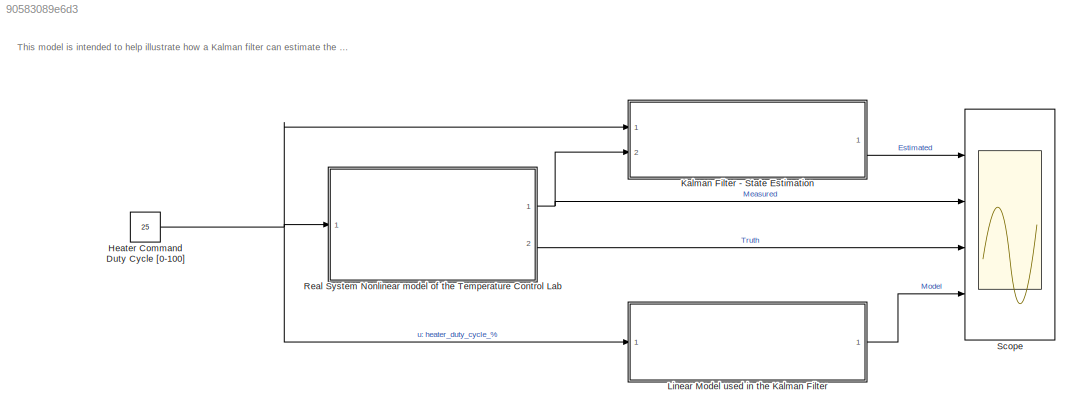
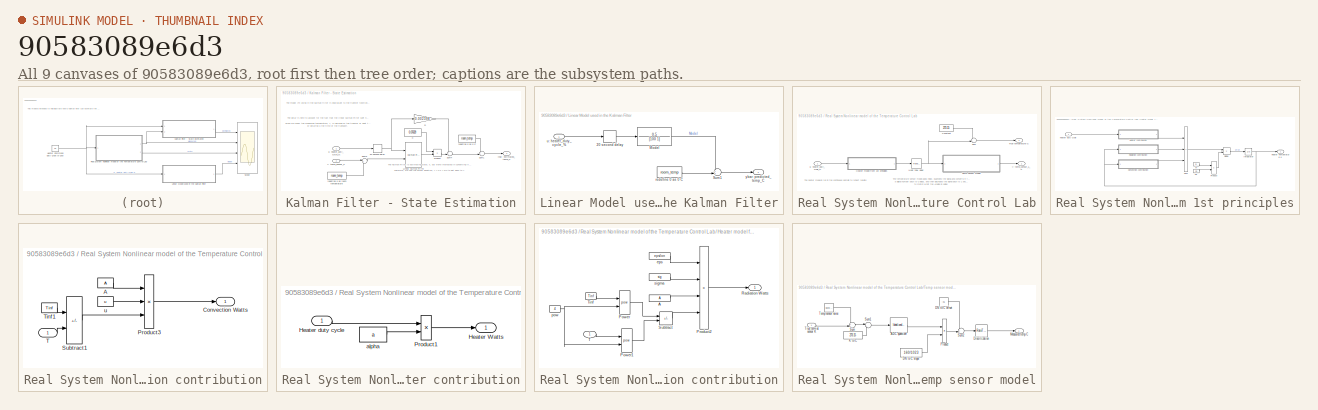
[diagram: thumbnail index - all 9 canvases of the model, root first then tree order]
MODEL slx_90583089e6d3
KIND model
CONFIG AbsTol = auto
CONFIG EnableMultiTasking = off
CONFIG FixedStep = 1
CONFIG MaxStep = auto
CONFIG MinStep = auto
CONFIG RelTol = 1e-3
CONFIG SampleTimeConstraint = Unconstrained
CONFIG SolverName = VariableStepAuto
CONFIG StartTime = 0.0
CONFIG StopTime = 500
WORKSPACE source: mxarray member
WORKSPACE A = 0.0012
WORKSPACE Cp = 500
WORKSPACE Tinf = 296
WORKSPACE a = 0.01
WORKSPACE epsilon = 0.9
WORKSPACE heat_flow_delay = 20
WORKSPACE m = 0.004
WORKSPACE room_temp = 23
WORKSPACE sig = 5.67e-08
WORKSPACE u = 10
BLOCK [Constant] Heater Command Duty Cycle [0-100]
  SampleTime = -1
  Value = 25
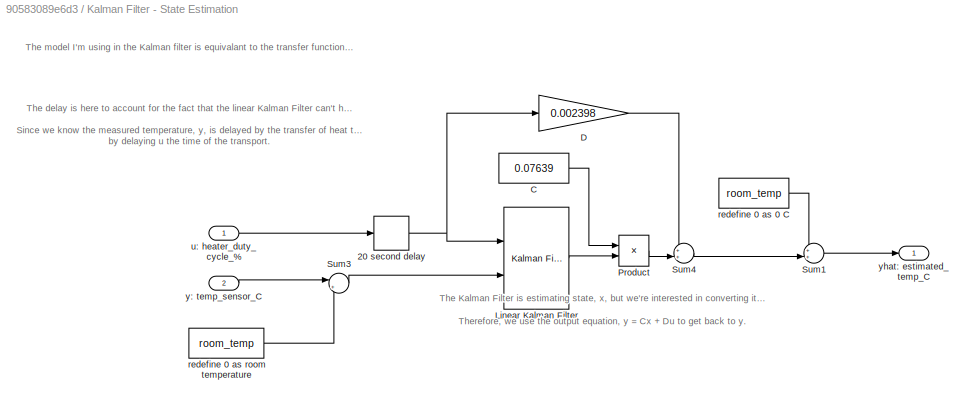
BLOCK [SubSystem] Kalman Filter - State Estimation
  Ports = [2, 1]
  RequestExecContextInheritance = off
BLOCK [Delay] Kalman Filter - State Estimation/20 second delay
  DelayLength = 20
  InputPortMap = u0
  Ports = [1, 1]
  SampleTime = 1
BLOCK [Constant] Kalman Filter - State Estimation/C
  Value = 0.07639
BLOCK [Gain] Kalman Filter - State Estimation/D
  Gain = 0.002398
BLOCK [Reference] Kalman Filter - State Estimation/Linear Kalman Filter  REF=ctrlSharedLib/Kalman Filter
  Ports = [2, 1]
  SourceBlock = ctrlSharedLib/Kalman Filter
  SourceProductBaseCode = CT,ID
  SourceType = ctrlKalmanFilter
BLOCK [Product] Kalman Filter - State Estimation/Product
  Ports = [2, 1]
BLOCK [Sum] Kalman Filter - State Estimation/Sum1
  Inputs = ++|
  Ports = [2, 1]
BLOCK [Sum] Kalman Filter - State Estimation/Sum3
  Inputs = |+-
  Ports = [2, 1]
BLOCK [Sum] Kalman Filter - State Estimation/Sum4
  Inputs = ++|
  Ports = [2, 1]
BLOCK [Constant] Kalman Filter - State Estimation/redefine 0 as 0 C
  Value = room_temp
BLOCK [Constant] Kalman Filter - State Estimation/redefine 0 as room temperature
  Value = room_temp
BLOCK [Inport] Kalman Filter - State Estimation/u: heater_duty_cycle_%
BLOCK [Inport] Kalman Filter - State Estimation/y: temp_sensor_C
  Port = 2
BLOCK [Outport] Kalman Filter - State Estimation/yhat: estimated_temp_C
  VectorParamsAs1DForOutWhenUnconnected = off
BLOCK [SubSystem] Linear Model used in the Kalman Filter
  Ports = [1, 1]
  RequestExecContextInheritance = off
BLOCK [Delay] Linear Model used in the Kalman Filter/20 second delay
  DelayLength = 20
  InputPortMap = u0
  Ports = [1, 1]
  SampleTime = 1
BLOCK [TransferFcn] Linear Model used in the Kalman Filter/Model
  Denominator = [100 1]
  Numerator = 0.5
BLOCK [Sum] Linear Model used in the Kalman Filter/Sum1
  Inputs = ++|
  Ports = [2, 1]
BLOCK [Constant] Linear Model used in the Kalman Filter/redefine 0 as 0 C
  Value = room_temp
BLOCK [Inport] Linear Model used in the Kalman Filter/u: heater_duty_cycle_%
BLOCK [Outport] Linear Model used in the Kalman Filter/ybar: predicted_temp_C 
BLOCK [SubSystem] Real System Nonlinear model of the Temperature Control Lab
  Ports = [1, 2]
  RequestExecContextInheritance = off
BLOCK [SubSystem] Real System Nonlinear model of the Temperature Control Lab/ Heater model from 1st principles
  Ports = [1, 1]
  RequestExecContextInheritance = off
BLOCK [SubSystem] Real System Nonlinear model of the Temperature Control Lab/ Heater model from 1st principles/Convection contribution
  Ports = [1, 1]
  RequestExecContextInheritance = off
BLOCK [Constant] Real System Nonlinear model of the Temperature Control Lab/ Heater model from 1st principles/Convection contribution/A
  Value = A
BLOCK [Outport] Real System Nonlinear model of the Temperature Control Lab/ Heater model from 1st principles/Convection contribution/Convection Watts
  VectorParamsAs1DForOutWhenUnconnected = off
BLOCK [Product] Real System Nonlinear model of the Temperature Control Lab/ Heater model from 1st principles/Convection contribution/Product3
  Inputs = 3
  Ports = [3, 1]
BLOCK [Sum] Real System Nonlinear model of the Temperature Control Lab/ Heater model from 1st principles/Convection contribution/Subtract1
  IconShape = rectangular
  Inputs = +-
  Ports = [2, 1]
BLOCK [Inport] Real System Nonlinear model of the Temperature Control Lab/ Heater model from 1st principles/Convection contribution/T
BLOCK [Constant] Real System Nonlinear model of the Temperature Control Lab/ Heater model from 1st principles/Convection contribution/Tinf1
  Value = Tinf
BLOCK [Constant] Real System Nonlinear model of the Temperature Control Lab/ Heater model from 1st principles/Convection contribution/u
  Value = u
BLOCK [Constant] Real System Nonlinear model of the Temperature Control Lab/ Heater model from 1st principles/Cp
  Value = Cp
BLOCK [Product] Real System Nonlinear model of the Temperature Control Lab/ Heater model from 1st principles/Divide
  Inputs = */
  Ports = [2, 1]
BLOCK [Outport] Real System Nonlinear model of the Temperature Control Lab/ Heater model from 1st principles/Heater Temperature K
  VectorParamsAs1DForOutWhenUnconnected = off
BLOCK [SubSystem] Real System Nonlinear model of the Temperature Control Lab/ Heater model from 1st principles/Heater contribution
  Ports = [1, 1]
  RequestExecContextInheritance = off
BLOCK [Outport] Real System Nonlinear model of the Temperature Control Lab/ Heater model from 1st principles/Heater contribution/Heater Watts
  VectorParamsAs1DForOutWhenUnconnected = off
BLOCK [Inport] Real System Nonlinear model of the Temperature Control Lab/ Heater model from 1st principles/Heater contribution/Heater duty cycle
BLOCK [Product] Real System Nonlinear model of the Temperature Control Lab/ Heater model from 1st principles/Heater contribution/Product1
  Ports = [2, 1]
BLOCK [Constant] Real System Nonlinear model of the Temperature Control Lab/ Heater model from 1st principles/Heater contribution/alpha
  Value = a
BLOCK [Integrator] Real System Nonlinear model of the Temperature Control Lab/ Heater model from 1st principles/Integrator
  InitialCondition = Tinf
  Ports = [1, 1]
BLOCK [Product] Real System Nonlinear model of the Temperature Control Lab/ Heater model from 1st principles/Product
  Ports = [2, 1]
BLOCK [SubSystem] Real System Nonlinear model of the Temperature Control Lab/ Heater model from 1st principles/Radiation contribution
  Ports = [1, 1]
  RequestExecContextInheritance = off
BLOCK [Constant] Real System Nonlinear model of the Temperature Control Lab/ Heater model from 1st principles/Radiation contribution/A
  Value = A
BLOCK [Math] Real System Nonlinear model of the Temperature Control Lab/ Heater model from 1st principles/Radiation contribution/Power
  Operator = pow
  Ports = [2, 1]
  SignedPower = on
BLOCK [Math] Real System Nonlinear model of the Temperature Control Lab/ Heater model from 1st principles/Radiation contribution/Power1
  Operator = pow
  Ports = [2, 1]
  SignedPower = on
BLOCK [Product] Real System Nonlinear model of the Temperature Control Lab/ Heater model from 1st principles/Radiation contribution/Product2
  Inputs = 4
  Ports = [4, 1]
BLOCK [Outport] Real System Nonlinear model of the Temperature Control Lab/ Heater model from 1st principles/Radiation contribution/Radiation Watts
  VectorParamsAs1DForOutWhenUnconnected = off
BLOCK [Sum] Real System Nonlinear model of the Temperature Control Lab/ Heater model from 1st principles/Radiation contribution/Subtract
  IconShape = rectangular
  Inputs = +-
  Ports = [2, 1]
BLOCK [Inport] Real System Nonlinear model of the Temperature Control Lab/ Heater model from 1st principles/Radiation contribution/T
  NameLocation = top
BLOCK [Constant] Real System Nonlinear model of the Temperature Control Lab/ Heater model from 1st principles/Radiation contribution/Tinf
  Value = Tinf
BLOCK [Constant] Real System Nonlinear model of the Temperature Control Lab/ Heater model from 1st principles/Radiation contribution/eps
  Value = epsilon
BLOCK [Constant] Real System Nonlinear model of the Temperature Control Lab/ Heater model from 1st principles/Radiation contribution/pow
  Value = 4
BLOCK [Constant] Real System Nonlinear model of the Temperature Control Lab/ Heater model from 1st principles/Radiation contribution/sigma
  Value = sig
BLOCK [Sum] Real System Nonlinear model of the Temperature Control Lab/ Heater model from 1st principles/Sum
  IconShape = rectangular
  Inputs = +++
  Ports = [3, 1]
BLOCK [Inport] Real System Nonlinear model of the Temperature Control Lab/ Heater model from 1st principles/heater duty cycle
BLOCK [Constant] Real System Nonlinear model of the Temperature Control Lab/ Heater model from 1st principles/m
  Value = m
BLOCK [Constant] Real System Nonlinear model of the Temperature Control Lab/Constant
  Value = 273.15
BLOCK [TransportDelay] Real System Nonlinear model of the Temperature Control Lab/Heat flow delay
  DelayTime = heat_flow_delay
  InitialOutput = Tinf
  Ports = [1, 1]
BLOCK [Sum] Real System Nonlinear model of the Temperature Control Lab/Sum
  Inputs = -+|
  Ports = [2, 1]
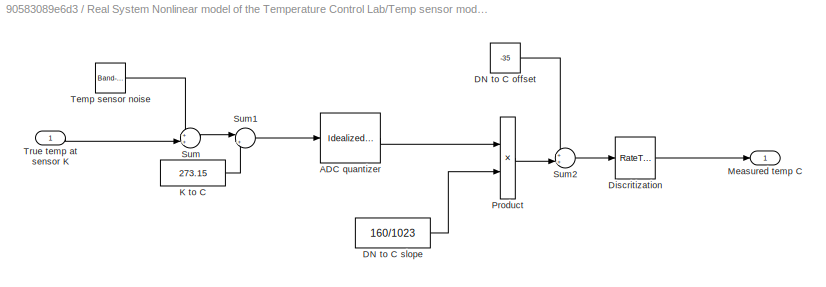
BLOCK [SubSystem] Real System Nonlinear model of the Temperature Control Lab/Temp sensor model
  Ports = [1, 1]
  RequestExecContextInheritance = off
BLOCK [Reference] Real System Nonlinear model of the Temperature Control Lab/Temp sensor model/ADC quantizer  REF=simulink_extras/Additional
Discrete/Idealized ADC quantizer
  AttributesFormatString = (settings: %<NumberOfConverterBits>-bit converter\nVmin: %<Vmin>, Vmax: %<Vmax>)
  Ports = [1, 1]
  SourceBlock = simulink_extras/Additional\nDiscrete/Idealized ADC quantizer
  SourceProductBaseCode = SL
  SourceType = IdealADC
BLOCK [Constant] Real System Nonlinear model of the Temperature Control Lab/Temp sensor model/DN to C offset
  Value = -35
BLOCK [Constant] Real System Nonlinear model of the Temperature Control Lab/Temp sensor model/DN to C slope
  Value = 160/1023
BLOCK [RateTransition] Real System Nonlinear model of the Temperature Control Lab/Temp sensor model/Discritization
  InitialCondition = Tinf
  OutPortSampleTime = 1
BLOCK [Constant] Real System Nonlinear model of the Temperature Control Lab/Temp sensor model/K to C
  Value = 273.15
BLOCK [Outport] Real System Nonlinear model of the Temperature Control Lab/Temp sensor model/Measured temp C
  VectorParamsAs1DForOutWhenUnconnected = off
BLOCK [Product] Real System Nonlinear model of the Temperature Control Lab/Temp sensor model/Product
  Ports = [2, 1]
BLOCK [Sum] Real System Nonlinear model of the Temperature Control Lab/Temp sensor model/Sum
  Inputs = ++|
  Ports = [2, 1]
BLOCK [Sum] Real System Nonlinear model of the Temperature Control Lab/Temp sensor model/Sum1
  Inputs = |+-
  Ports = [2, 1]
BLOCK [Sum] Real System Nonlinear model of the Temperature Control Lab/Temp sensor model/Sum2
  Inputs = ++|
  Ports = [2, 1]
BLOCK [Reference] Real System Nonlinear model of the Temperature Control Lab/Temp sensor model/Temp sensor noise  REF=simulink/Sources/Band-Limited
White Noise
  Ports = [0, 1]
  SourceBlock = simulink/Sources/Band-Limited\nWhite Noise
  SourceProductBaseCode = SL
  SourceType = Band-Limited White Noise.
BLOCK [Inport] Real System Nonlinear model of the Temperature Control Lab/Temp sensor model/True temp at sensor K
BLOCK [Outport] Real System Nonlinear model of the Temperature Control Lab/True temperature C
  Port = 2
  VectorParamsAs1DForOutWhenUnconnected = off
BLOCK [Inport] Real System Nonlinear model of the Temperature Control Lab/u: heater_duty_cycle_%
BLOCK [Outport] Real System Nonlinear model of the Temperature Control Lab/y: temp_sensor_1_C
  VectorParamsAs1DForOutWhenUnconnected = off
BLOCK [Scope] Scope
  Floating = off
  NumInputPorts = 4
  Ports = [4]
  ScopeSpecificationString = Simulink.scopes.TimeScopeBlockCfg('CurrentConfiguration', extmgr.ConfigurationSet(extmgr.Configuration('Core','General UI',true),extmgr.Configuration('Core','Source UI',true),extmgr.Configuration('Sources','WiredSimulink',true),extmgr.Configuration('Visuals','Time Domain',true,'SerializedDisplays',{struct('MinYLimReal','20.64027','MaxYLimReal','38.23558','YLabelReal','','MinYLimMag','20.64027','Ma...<+1878ch>
ANNOTATION (root): This model is intended to help illustrate how a Kalman filter can estimate the state of a system. The "real system" is a nonlinear model of the Temperature Control Lab by Prof. John Hedengren of BYU. The output is the true temperature and a noisy measurement of it. They are compared to the predicted temperature from a simple linear model and the estimate temperature from the Kalman filter.
ANNOTATION Kalman Filter - State Estimation: The Kalman Filter is estimating state, x, but we're interested in converting it back to the output variable, y, the measured variable. Therefore, we use the output equation, y = Cx + Du to get back to y.
ANNOTATION Kalman Filter - State Estimation: The delay is here to account for the fact that the linear Kalman Filter can't handle delay. Since we know the measured temperature, y, is delayed by the transfer of heat through the physical system, we can align y and u by delaying u the time of the transport.
ANNOTATION Kalman Filter - State Estimation: The model I'm using in the Kalman filter is equivalant to the transfer function 0.5/(100s + 1). It is the discrete state space representation with sample time 1 second.
ANNOTATION Real System Nonlinear model of the Temperature Control Lab: The heater model is run in the continuous domain to reflect real life
ANNOTATION Real System Nonlinear model of the Temperature Control Lab: The temperature sensor model adds noise, quantizes the signal and converts it from a digital number back to Celsius, and then discritizes the signal back to 1 sec sample time to match what the Arduino is doing
NET Heater Command Duty Cycle [0-100]:1 -> Kalman Filter - State Estimation:1, Linear Model used in the Kalman Filter:1, Real System Nonlinear model of the Temperature Control Lab:1
NET Kalman Filter - State Estimation/20 second delay:1 -> Kalman Filter - State Estimation/D:1, Kalman Filter - State Estimation/Linear Kalman Filter:1
LINE Kalman Filter - State Estimation/C:1 -> Kalman Filter - State Estimation/Product:1
LINE Kalman Filter - State Estimation/D:1 -> Kalman Filter - State Estimation/Sum4:1
LINE Kalman Filter - State Estimation/Linear Kalman Filter:1 -> Kalman Filter - State Estimation/Product:2
LINE Kalman Filter - State Estimation/Product:1 -> Kalman Filter - State Estimation/Sum4:2
LINE Kalman Filter - State Estimation/Sum1:1 -> Kalman Filter - State Estimation/yhat: estimated_temp_C:1
LINE Kalman Filter - State Estimation/Sum3:1 -> Kalman Filter - State Estimation/Linear Kalman Filter:2
LINE Kalman Filter - State Estimation/Sum4:1 -> Kalman Filter - State Estimation/Sum1:2
LINE Kalman Filter - State Estimation/redefine 0 as 0 C:1 -> Kalman Filter - State Estimation/Sum1:1
LINE Kalman Filter - State Estimation/redefine 0 as room temperature:1 -> Kalman Filter - State Estimation/Sum3:2
LINE Kalman Filter - State Estimation/u: heater_duty_cycle_%:1 -> Kalman Filter - State Estimation/20 second delay:1
LINE Kalman Filter - State Estimation/y: temp_sensor_C:1 -> Kalman Filter - State Estimation/Sum3:1
LINE Kalman Filter - State Estimation:1 -> Scope:1
LINE Linear Model used in the Kalman Filter/20 second delay:1 -> Linear Model used in the Kalman Filter/Model:1
LINE Linear Model used in the Kalman Filter/Model:1 -> Linear Model used in the Kalman Filter/Sum1:1
LINE Linear Model used in the Kalman Filter/Sum1:1 -> Linear Model used in the Kalman Filter/ybar: predicted_temp_C :1
LINE Linear Model used in the Kalman Filter/redefine 0 as 0 C:1 -> Linear Model used in the Kalman Filter/Sum1:2
LINE Linear Model used in the Kalman Filter/u: heater_duty_cycle_%:1 -> Linear Model used in the Kalman Filter/20 second delay:1
LINE Linear Model used in the Kalman Filter:1 -> Scope:4
LINE Real System Nonlinear model of the Temperature Control Lab/ Heater model from 1st principles/Convection contribution/A:1 -> Real System Nonlinear model of the Temperature Control Lab/ Heater model from 1st principles/Convection contribution/Product3:1
LINE Real System Nonlinear model of the Temperature Control Lab/ Heater model from 1st principles/Convection contribution/Product3:1 -> Real System Nonlinear model of the Temperature Control Lab/ Heater model from 1st principles/Convection contribution/Convection Watts:1
LINE Real System Nonlinear model of the Temperature Control Lab/ Heater model from 1st principles/Convection contribution/Subtract1:1 -> Real System Nonlinear model of the Temperature Control Lab/ Heater model from 1st principles/Convection contribution/Product3:3
LINE Real System Nonlinear model of the Temperature Control Lab/ Heater model from 1st principles/Convection contribution/T:1 -> Real System Nonlinear model of the Temperature Control Lab/ Heater model from 1st principles/Convection contribution/Subtract1:2
LINE Real System Nonlinear model of the Temperature Control Lab/ Heater model from 1st principles/Convection contribution/Tinf1:1 -> Real System Nonlinear model of the Temperature Control Lab/ Heater model from 1st principles/Convection contribution/Subtract1:1
LINE Real System Nonlinear model of the Temperature Control Lab/ Heater model from 1st principles/Convection contribution/u:1 -> Real System Nonlinear model of the Temperature Control Lab/ Heater model from 1st principles/Convection contribution/Product3:2
LINE Real System Nonlinear model of the Temperature Control Lab/ Heater model from 1st principles/Convection contribution:1 -> Real System Nonlinear model of the Temperature Control Lab/ Heater model from 1st principles/Sum:3
LINE Real System Nonlinear model of the Temperature Control Lab/ Heater model from 1st principles/Cp:1 -> Real System Nonlinear model of the Temperature Control Lab/ Heater model from 1st principles/Product:2
LINE Real System Nonlinear model of the Temperature Control Lab/ Heater model from 1st principles/Divide:1 -> Real System Nonlinear model of the Temperature Control Lab/ Heater model from 1st principles/Integrator:1
LINE Real System Nonlinear model of the Temperature Control Lab/ Heater model from 1st principles/Heater contribution/Heater duty cycle:1 -> Real System Nonlinear model of the Temperature Control Lab/ Heater model from 1st principles/Heater contribution/Product1:1
LINE Real System Nonlinear model of the Temperature Control Lab/ Heater model from 1st principles/Heater contribution/Product1:1 -> Real System Nonlinear model of the Temperature Control Lab/ Heater model from 1st principles/Heater contribution/Heater Watts:1
LINE Real System Nonlinear model of the Temperature Control Lab/ Heater model from 1st principles/Heater contribution/alpha:1 -> Real System Nonlinear model of the Temperature Control Lab/ Heater model from 1st principles/Heater contribution/Product1:2
LINE Real System Nonlinear model of the Temperature Control Lab/ Heater model from 1st principles/Heater contribution:1 -> Real System Nonlinear model of the Temperature Control Lab/ Heater model from 1st principles/Sum:1
NET Real System Nonlinear model of the Temperature Control Lab/ Heater model from 1st principles/Integrator:1 -> Real System Nonlinear model of the Temperature Control Lab/ Heater model from 1st principles/Convection contribution:1, Real System Nonlinear model of the Temperature Control Lab/ Heater model from 1st principles/Heater Temperature K:1, Real System Nonlinear model of the Temperature Control Lab/ Heater model from 1st principles/Radiation contribution:1
LINE Real System Nonlinear model of the Temperature Control Lab/ Heater model from 1st principles/Product:1 -> Real System Nonlinear model of the Temperature Control Lab/ Heater model from 1st principles/Divide:2
LINE Real System Nonlinear model of the Temperature Control Lab/ Heater model from 1st principles/Radiation contribution/A:1 -> Real System Nonlinear model of the Temperature Control Lab/ Heater model from 1st principles/Radiation contribution/Product2:3
LINE Real System Nonlinear model of the Temperature Control Lab/ Heater model from 1st principles/Radiation contribution/Power1:1 -> Real System Nonlinear model of the Temperature Control Lab/ Heater model from 1st principles/Radiation contribution/Subtract:2
LINE Real System Nonlinear model of the Temperature Control Lab/ Heater model from 1st principles/Radiation contribution/Power:1 -> Real System Nonlinear model of the Temperature Control Lab/ Heater model from 1st principles/Radiation contribution/Subtract:1
LINE Real System Nonlinear model of the Temperature Control Lab/ Heater model from 1st principles/Radiation contribution/Product2:1 -> Real System Nonlinear model of the Temperature Control Lab/ Heater model from 1st principles/Radiation contribution/Radiation Watts:1
LINE Real System Nonlinear model of the Temperature Control Lab/ Heater model from 1st principles/Radiation contribution/Subtract:1 -> Real System Nonlinear model of the Temperature Control Lab/ Heater model from 1st principles/Radiation contribution/Product2:4
LINE Real System Nonlinear model of the Temperature Control Lab/ Heater model from 1st principles/Radiation contribution/T:1 -> Real System Nonlinear model of the Temperature Control Lab/ Heater model from 1st principles/Radiation contribution/Power1:1
LINE Real System Nonlinear model of the Temperature Control Lab/ Heater model from 1st principles/Radiation contribution/Tinf:1 -> Real System Nonlinear model of the Temperature Control Lab/ Heater model from 1st principles/Radiation contribution/Power:1
LINE Real System Nonlinear model of the Temperature Control Lab/ Heater model from 1st principles/Radiation contribution/eps:1 -> Real System Nonlinear model of the Temperature Control Lab/ Heater model from 1st principles/Radiation contribution/Product2:1
NET Real System Nonlinear model of the Temperature Control Lab/ Heater model from 1st principles/Radiation contribution/pow:1 -> Real System Nonlinear model of the Temperature Control Lab/ Heater model from 1st principles/Radiation contribution/Power1:2, Real System Nonlinear model of the Temperature Control Lab/ Heater model from 1st principles/Radiation contribution/Power:2
LINE Real System Nonlinear model of the Temperature Control Lab/ Heater model from 1st principles/Radiation contribution/sigma:1 -> Real System Nonlinear model of the Temperature Control Lab/ Heater model from 1st principles/Radiation contribution/Product2:2
LINE Real System Nonlinear model of the Temperature Control Lab/ Heater model from 1st principles/Radiation contribution:1 -> Real System Nonlinear model of the Temperature Control Lab/ Heater model from 1st principles/Sum:2
LINE Real System Nonlinear model of the Temperature Control Lab/ Heater model from 1st principles/Sum:1 -> Real System Nonlinear model of the Temperature Control Lab/ Heater model from 1st principles/Divide:1
LINE Real System Nonlinear model of the Temperature Control Lab/ Heater model from 1st principles/heater duty cycle:1 -> Real System Nonlinear model of the Temperature Control Lab/ Heater model from 1st principles/Heater contribution:1
LINE Real System Nonlinear model of the Temperature Control Lab/ Heater model from 1st principles/m:1 -> Real System Nonlinear model of the Temperature Control Lab/ Heater model from 1st principles/Product:1
LINE Real System Nonlinear model of the Temperature Control Lab/ Heater model from 1st principles:1 -> Real System Nonlinear model of the Temperature Control Lab/Heat flow delay:1
LINE Real System Nonlinear model of the Temperature Control Lab/Constant:1 -> Real System Nonlinear model of the Temperature Control Lab/Sum:1
NET Real System Nonlinear model of the Temperature Control Lab/Heat flow delay:1 -> Real System Nonlinear model of the Temperature Control Lab/Sum:2, Real System Nonlinear model of the Temperature Control Lab/Temp sensor model:1
LINE Real System Nonlinear model of the Temperature Control Lab/Sum:1 -> Real System Nonlinear model of the Temperature Control Lab/True temperature C:1
LINE Real System Nonlinear model of the Temperature Control Lab/Temp sensor model/ADC quantizer:1 -> Real System Nonlinear model of the Temperature Control Lab/Temp sensor model/Product:1
LINE Real System Nonlinear model of the Temperature Control Lab/Temp sensor model/DN to C offset:1 -> Real System Nonlinear model of the Temperature Control Lab/Temp sensor model/Sum2:1
LINE Real System Nonlinear model of the Temperature Control Lab/Temp sensor model/DN to C slope:1 -> Real System Nonlinear model of the Temperature Control Lab/Temp sensor model/Product:2
LINE Real System Nonlinear model of the Temperature Control Lab/Temp sensor model/Discritization:1 -> Real System Nonlinear model of the Temperature Control Lab/Temp sensor model/Measured temp C:1
LINE Real System Nonlinear model of the Temperature Control Lab/Temp sensor model/K to C:1 -> Real System Nonlinear model of the Temperature Control Lab/Temp sensor model/Sum1:2
LINE Real System Nonlinear model of the Temperature Control Lab/Temp sensor model/Product:1 -> Real System Nonlinear model of the Temperature Control Lab/Temp sensor model/Sum2:2
LINE Real System Nonlinear model of the Temperature Control Lab/Temp sensor model/Sum1:1 -> Real System Nonlinear model of the Temperature Control Lab/Temp sensor model/ADC quantizer:1
LINE Real System Nonlinear model of the Temperature Control Lab/Temp sensor model/Sum2:1 -> Real System Nonlinear model of the Temperature Control Lab/Temp sensor model/Discritization:1
LINE Real System Nonlinear model of the Temperature Control Lab/Temp sensor model/Sum:1 -> Real System Nonlinear model of the Temperature Control Lab/Temp sensor model/Sum1:1
LINE Real System Nonlinear model of the Temperature Control Lab/Temp sensor model/Temp sensor noise:1 -> Real System Nonlinear model of the Temperature Control Lab/Temp sensor model/Sum:1
LINE Real System Nonlinear model of the Temperature Control Lab/Temp sensor model/True temp at sensor K:1 -> Real System Nonlinear model of the Temperature Control Lab/Temp sensor model/Sum:2
LINE Real System Nonlinear model of the Temperature Control Lab/Temp sensor model:1 -> Real System Nonlinear model of the Temperature Control Lab/y: temp_sensor_1_C:1
LINE Real System Nonlinear model of the Temperature Control Lab/u: heater_duty_cycle_%:1 -> Real System Nonlinear model of the Temperature Control Lab/ Heater model from 1st principles:1
NET Real System Nonlinear model of the Temperature Control Lab:1 -> Kalman Filter - State Estimation:2, Scope:2
LINE Real System Nonlinear model of the Temperature Control Lab:2 -> Scope:3
note: NET lines group one-source signal fan-out (src -> all destinations, sorted); 1:1 wires keep LINE
